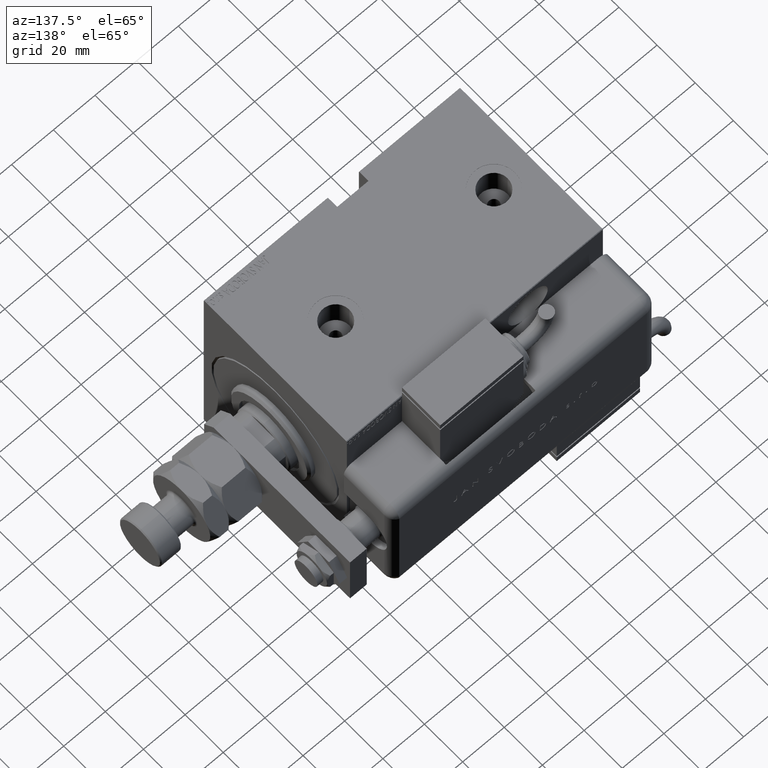
[diagram: clean part render]
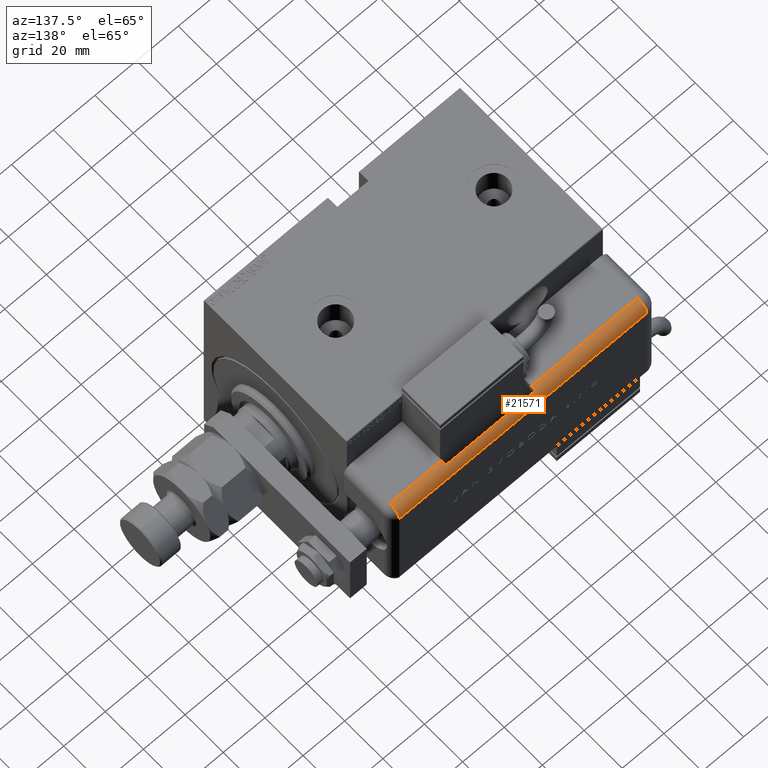
[diagram: same view with one face highlighted and labeled with its STEP entity id]
A machine part, auxiliary view. The second image highlights one B-rep face of the part: STEP entity #21571.
In plain terms, the highlighted cylindrical surface (edge-blend (fillet) strip) has radius 5 mm, axis along (-1, -0, -0).
Its self-contained STEP definition (entity closure, byte-faithful):
#56 = VECTOR ( 'NONE', #25736, 1000.000000000000000 ) ;
#128 = CIRCLE ( 'NONE', #36080, 5.000000000000000888 ) ;
#343 = VECTOR ( 'NONE', #38026, 1000.000000000000000 ) ;
#791 = ORIENTED_EDGE ( 'NONE', *, *, #25946, .T. ) ;
#1549 = DIRECTION ( 'NONE',  ( -0.000000000000000000, -0.000000000000000000, 1.000000000000000000 ) ) ;
#2199 = CARTESIAN_POINT ( 'NONE',  ( -28.48998886412872267, 22.99999999999998934, 56.00000000000000711 ) ) ;
#3797 = EDGE_LOOP ( 'NONE', ( #21260, #32850, #15433, #34105, #38025, #37676, #791, #29824 ) ) ;
#6911 = CARTESIAN_POINT ( 'NONE',  ( -23.99999999999999645, 20.79999999999998295, 56.00000000000000711 ) ) ;
#8241 = DIRECTION ( 'NONE',  ( 0.000000000000000000, -0.000000000000000000, -1.000000000000000000 ) ) ;
#8310 = DIRECTION ( 'NONE',  ( -1.000000000000000000, 0.000000000000000000, 0.000000000000000000 ) ) ;
#8476 = EDGE_CURVE ( 'NONE', #53153, #35878, #128, .T. ) ;
#10442 = CARTESIAN_POINT ( 'NONE',  ( -28.48998886412872267, 22.99999999999998934, 124.0000000000000000 ) ) ;
#10739 = VERTEX_POINT ( 'NONE', #50575 ) ;
#11005 = DIRECTION ( 'NONE',  ( -1.000000000000000000, 0.000000000000000000, 0.000000000000000000 ) ) ;
#13585 = VERTEX_POINT ( 'NONE', #18335 ) ;
#13736 = LINE ( 'NONE', #60933, #46829 ) ;
#14631 = CIRCLE ( 'NONE', #49602, 5.000000000000000888 ) ;
#15241 = VERTEX_POINT ( 'NONE', #29861 ) ;
#15433 = ORIENTED_EDGE ( 'NONE', *, *, #25735, .F. ) ;
#15716 = DIRECTION ( 'NONE',  ( -0.000000000000000000, -0.000000000000000000, 1.000000000000000000 ) ) ;
#16651 = CARTESIAN_POINT ( 'NONE',  ( -23.99999999999999645, 20.79999999999998295, 5.000000000000004441 ) ) ;
#18335 = CARTESIAN_POINT ( 'NONE',  ( -28.99999999999999645, 20.79999999999998295, 5.000000000000004441 ) ) ;
#21260 = ORIENTED_EDGE ( 'NONE', *, *, #8476, .F. ) ;
#21571 = ADVANCED_FACE ( 'NONE', ( #22411 ), #26177, .T. ) ;
#21652 = CIRCLE ( 'NONE', #25620, 5.000000000000000888 ) ;
#22272 = EDGE_CURVE ( 'NONE', #15241, #26276, #60417, .T. ) ;
#22411 = FACE_OUTER_BOUND ( 'NONE', #3797, .T. ) ;
#23569 = DIRECTION ( 'NONE',  ( 1.000000000000000000, 0.000000000000000000, 0.000000000000000000 ) ) ;
#25331 = CARTESIAN_POINT ( 'NONE',  ( -28.99999999999999645, 20.79999999999998295, 124.0000000000000000 ) ) ;
#25620 = AXIS2_PLACEMENT_3D ( 'NONE', #41385, #8241, #23569 ) ;
#25735 = EDGE_CURVE ( 'NONE', #31197, #10739, #21652, .T. ) ;
#25736 = DIRECTION ( 'NONE',  ( -0.000000000000000000, -0.000000000000000000, 1.000000000000000000 ) ) ;
#25772 = LINE ( 'NONE', #10442, #51429 ) ;
#25946 = EDGE_CURVE ( 'NONE', #29116, #13585, #14631, .T. ) ;
#26177 = CYLINDRICAL_SURFACE ( 'NONE', #48439, 5.000000000000000888 ) ;
#26276 = VERTEX_POINT ( 'NONE', #25331 ) ;
#28946 = LINE ( 'NONE', #52687, #343 ) ;
#29116 = VERTEX_POINT ( 'NONE', #54548 ) ;
#29824 = ORIENTED_EDGE ( 'NONE', *, *, #47097, .F. ) ;
#29861 = CARTESIAN_POINT ( 'NONE',  ( -23.99999999999999645, 25.79999999999998295, 124.0000000000000000 ) ) ;
#30949 = EDGE_CURVE ( 'NONE', #10739, #53153, #25772, .T. ) ;
#31197 = VERTEX_POINT ( 'NONE', #40961 ) ;
#32108 = CARTESIAN_POINT ( 'NONE',  ( -23.99999999999999645, 20.79999999999998295, 124.0000000000000000 ) ) ;
#32850 = ORIENTED_EDGE ( 'NONE', *, *, #30949, .F. ) ;
#34105 = ORIENTED_EDGE ( 'NONE', *, *, #60585, .F. ) ;
#35108 = LINE ( 'NONE', #54151, #56 ) ;
#35878 = VERTEX_POINT ( 'NONE', #41141 ) ;
#36080 = AXIS2_PLACEMENT_3D ( 'NONE', #6911, #36300, #45977 ) ;
#36300 = DIRECTION ( 'NONE',  ( -0.000000000000000000, -0.000000000000000000, 1.000000000000000000 ) ) ;
#37676 = ORIENTED_EDGE ( 'NONE', *, *, #52180, .F. ) ;
#38025 = ORIENTED_EDGE ( 'NONE', *, *, #22272, .F. ) ;
#38026 = DIRECTION ( 'NONE',  ( 0.000000000000000000, 0.000000000000000000, -1.000000000000000000 ) ) ;
#39214 = DIRECTION ( 'NONE',  ( 0.000000000000000000, 0.000000000000000000, -1.000000000000000000 ) ) ;
#40634 = DIRECTION ( 'NONE',  ( -1.000000000000000000, 0.000000000000000000, 0.000000000000000000 ) ) ;
#40961 = CARTESIAN_POINT ( 'NONE',  ( -28.99999999999999645, 20.79999999999998295, 99.00000000000000000 ) ) ;
#41141 = CARTESIAN_POINT ( 'NONE',  ( -28.99999999999999645, 20.79999999999998295, 56.00000000000000711 ) ) ;
#41385 = CARTESIAN_POINT ( 'NONE',  ( -23.99999999999999645, 20.79999999999998295, 99.00000000000000000 ) ) ;
#41865 = DIRECTION ( 'NONE',  ( 0.000000000000000000, 0.000000000000000000, -1.000000000000000000 ) ) ;
#44377 = CARTESIAN_POINT ( 'NONE',  ( -23.99999999999999645, 20.79999999999998295, 124.0000000000000000 ) ) ;
#45977 = DIRECTION ( 'NONE',  ( -1.000000000000000000, 4.163336342344336238E-15, 0.000000000000000000 ) ) ;
#46829 = VECTOR ( 'NONE', #41865, 1000.000000000000000 ) ;
#47097 = EDGE_CURVE ( 'NONE', #35878, #13585, #13736, .T. ) ;
#48439 = AXIS2_PLACEMENT_3D ( 'NONE', #32108, #51138, #8310 ) ;
#49602 = AXIS2_PLACEMENT_3D ( 'NONE', #16651, #15716, #11005 ) ;
#50575 = CARTESIAN_POINT ( 'NONE',  ( -28.48998886412872267, 22.99999999999998934, 99.00000000000000000 ) ) ;
#51138 = DIRECTION ( 'NONE',  ( 0.000000000000000000, 0.000000000000000000, -1.000000000000000000 ) ) ;
#51429 = VECTOR ( 'NONE', #39214, 1000.000000000000000 ) ;
#52180 = EDGE_CURVE ( 'NONE', #29116, #15241, #35108, .T. ) ;
#52687 = CARTESIAN_POINT ( 'NONE',  ( -28.99999999999999645, 20.79999999999998295, 124.0000000000000000 ) ) ;
#53153 = VERTEX_POINT ( 'NONE', #2199 ) ;
#54151 = CARTESIAN_POINT ( 'NONE',  ( -23.99999999999999645, 25.79999999999998295, 124.0000000000000000 ) ) ;
#54417 = AXIS2_PLACEMENT_3D ( 'NONE', #44377, #1549, #40634 ) ;
#54548 = CARTESIAN_POINT ( 'NONE',  ( -23.99999999999999645, 25.79999999999998295, 5.000000000000004441 ) ) ;
#60417 = CIRCLE ( 'NONE', #54417, 5.000000000000000888 ) ;
#60585 = EDGE_CURVE ( 'NONE', #26276, #31197, #28946, .T. ) ;
#60933 = CARTESIAN_POINT ( 'NONE',  ( -28.99999999999999645, 20.79999999999998295, 124.0000000000000000 ) ) ;